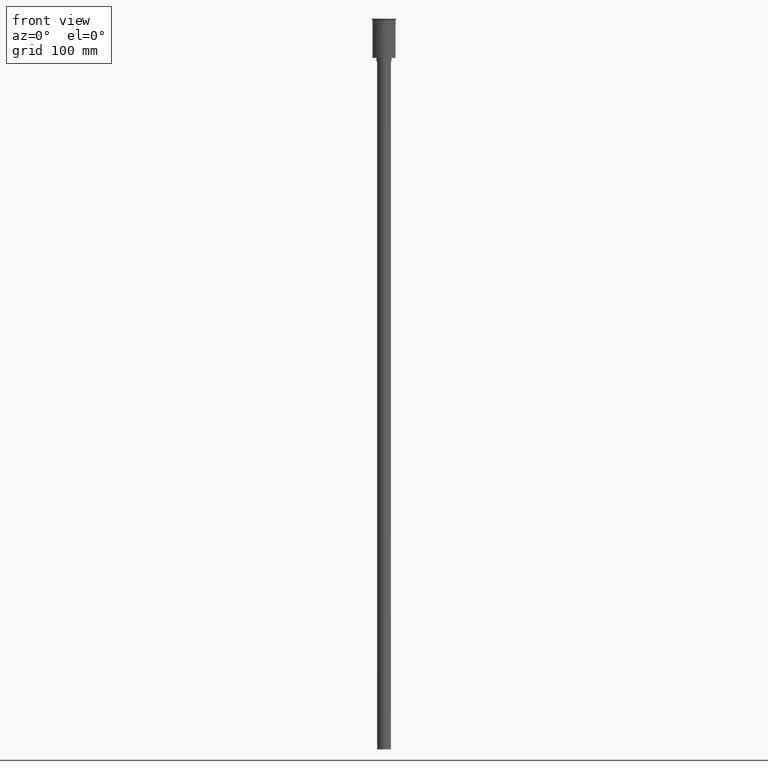
[diagram: clean part render]
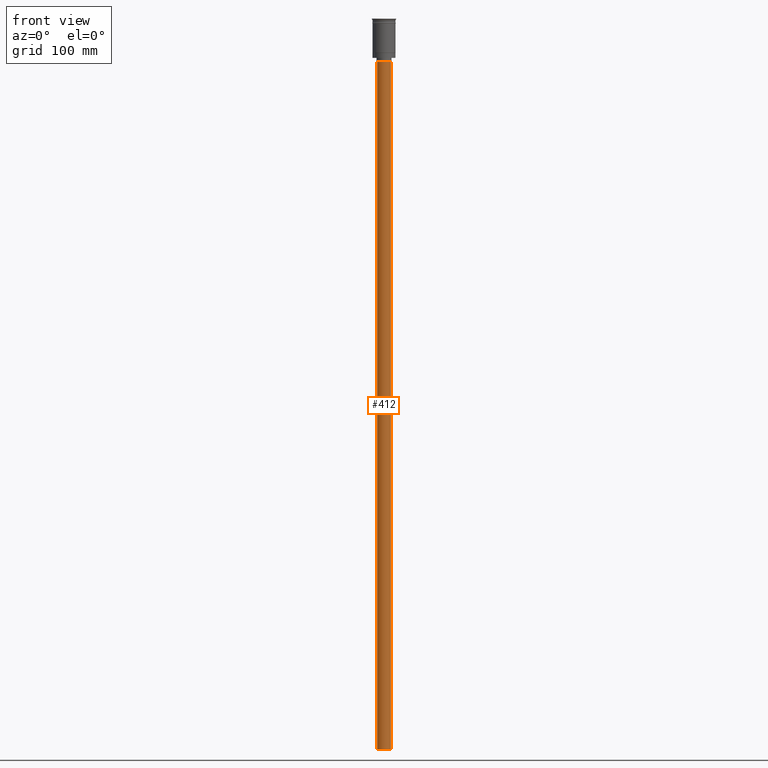
[diagram: same view with one face highlighted and labeled with its STEP entity id]
A machine part, front view. The second image highlights one B-rep face of the part: STEP entity #412.
In plain terms, the highlighted cylindrical surface (edge-blend (fillet) strip) has radius 6 mm, axis along (-0, -0, 1).
Its self-contained STEP definition (entity closure, byte-faithful):
#39 = CARTESIAN_POINT ( 'NONE',  ( 6.000000000000000888, 0.000000000000000000, -634.0000000000000000 ) ) ;
#109 = EDGE_CURVE ( 'NONE', #510, #778, #585, .T. ) ;
#139 = DIRECTION ( 'NONE',  ( -1.000000000000000000, 0.000000000000000000, 0.000000000000000000 ) ) ;
#224 = LINE ( 'NONE', #1112, #1469 ) ;
#396 = CARTESIAN_POINT ( 'NONE',  ( 0.000000000000000000, 0.000000000000000000, -37.00000000000000000 ) ) ;
#412 = ADVANCED_FACE ( 'NONE', ( #810 ), #1226, .T. ) ;
#419 = CIRCLE ( 'NONE', #1220, 6.000000000000000888 ) ;
#448 = AXIS2_PLACEMENT_3D ( 'NONE', #396, #636, #139 ) ;
#454 = CARTESIAN_POINT ( 'NONE',  ( -6.000000000000000888, 7.347880794884120722E-16, -37.00000000000000000 ) ) ;
#510 = VERTEX_POINT ( 'NONE', #874 ) ;
#525 = AXIS2_PLACEMENT_3D ( 'NONE', #887, #605, #1604 ) ;
#585 = LINE ( 'NONE', #1090, #732 ) ;
#605 = DIRECTION ( 'NONE',  ( -0.000000000000000000, -0.000000000000000000, 1.000000000000000000 ) ) ;
#619 = EDGE_CURVE ( 'NONE', #1255, #1113, #224, .T. ) ;
#636 = DIRECTION ( 'NONE',  ( 0.000000000000000000, 0.000000000000000000, -1.000000000000000000 ) ) ;
#732 = VECTOR ( 'NONE', #1553, 1000.000000000000000 ) ;
#769 = EDGE_CURVE ( 'NONE', #1255, #510, #419, .T. ) ;
#778 = VERTEX_POINT ( 'NONE', #454 ) ;
#810 = FACE_OUTER_BOUND ( 'NONE', #1301, .T. ) ;
#833 = DIRECTION ( 'NONE',  ( 0.000000000000000000, 0.000000000000000000, -1.000000000000000000 ) ) ;
#874 = CARTESIAN_POINT ( 'NONE',  ( -6.000000000000000888, 7.347880794884120722E-16, -634.0000000000000000 ) ) ;
#887 = CARTESIAN_POINT ( 'NONE',  ( 0.000000000000000000, 0.000000000000000000, -634.0000000000000000 ) ) ;
#1020 = CARTESIAN_POINT ( 'NONE',  ( 6.000000000000000888, 0.000000000000000000, -37.00000000000000000 ) ) ;
#1067 = DIRECTION ( 'NONE',  ( -1.000000000000000000, 0.000000000000000000, 0.000000000000000000 ) ) ;
#1090 = CARTESIAN_POINT ( 'NONE',  ( -6.000000000000000888, 7.347880794884120722E-16, -634.0000000000000000 ) ) ;
#1092 = EDGE_CURVE ( 'NONE', #1113, #778, #1392, .T. ) ;
#1112 = CARTESIAN_POINT ( 'NONE',  ( 6.000000000000000888, 0.000000000000000000, -634.0000000000000000 ) ) ;
#1113 = VERTEX_POINT ( 'NONE', #1020 ) ;
#1220 = AXIS2_PLACEMENT_3D ( 'NONE', #1276, #833, #1067 ) ;
#1226 = CYLINDRICAL_SURFACE ( 'NONE', #525, 6.000000000000000888 ) ;
#1255 = VERTEX_POINT ( 'NONE', #39 ) ;
#1276 = CARTESIAN_POINT ( 'NONE',  ( 0.000000000000000000, 0.000000000000000000, -634.0000000000000000 ) ) ;
#1301 = EDGE_LOOP ( 'NONE', ( #1597, #1569, #1447, #1561 ) ) ;
#1392 = CIRCLE ( 'NONE', #448, 6.000000000000000888 ) ;
#1447 = ORIENTED_EDGE ( 'NONE', *, *, #619, .T. ) ;
#1469 = VECTOR ( 'NONE', #1502, 1000.000000000000000 ) ;
#1502 = DIRECTION ( 'NONE',  ( -0.000000000000000000, -0.000000000000000000, 1.000000000000000000 ) ) ;
#1553 = DIRECTION ( 'NONE',  ( -0.000000000000000000, -0.000000000000000000, 1.000000000000000000 ) ) ;
#1561 = ORIENTED_EDGE ( 'NONE', *, *, #1092, .T. ) ;
#1569 = ORIENTED_EDGE ( 'NONE', *, *, #769, .F. ) ;
#1597 = ORIENTED_EDGE ( 'NONE', *, *, #109, .F. ) ;
#1604 = DIRECTION ( 'NONE',  ( 1.000000000000000000, 0.000000000000000000, 0.000000000000000000 ) ) ;